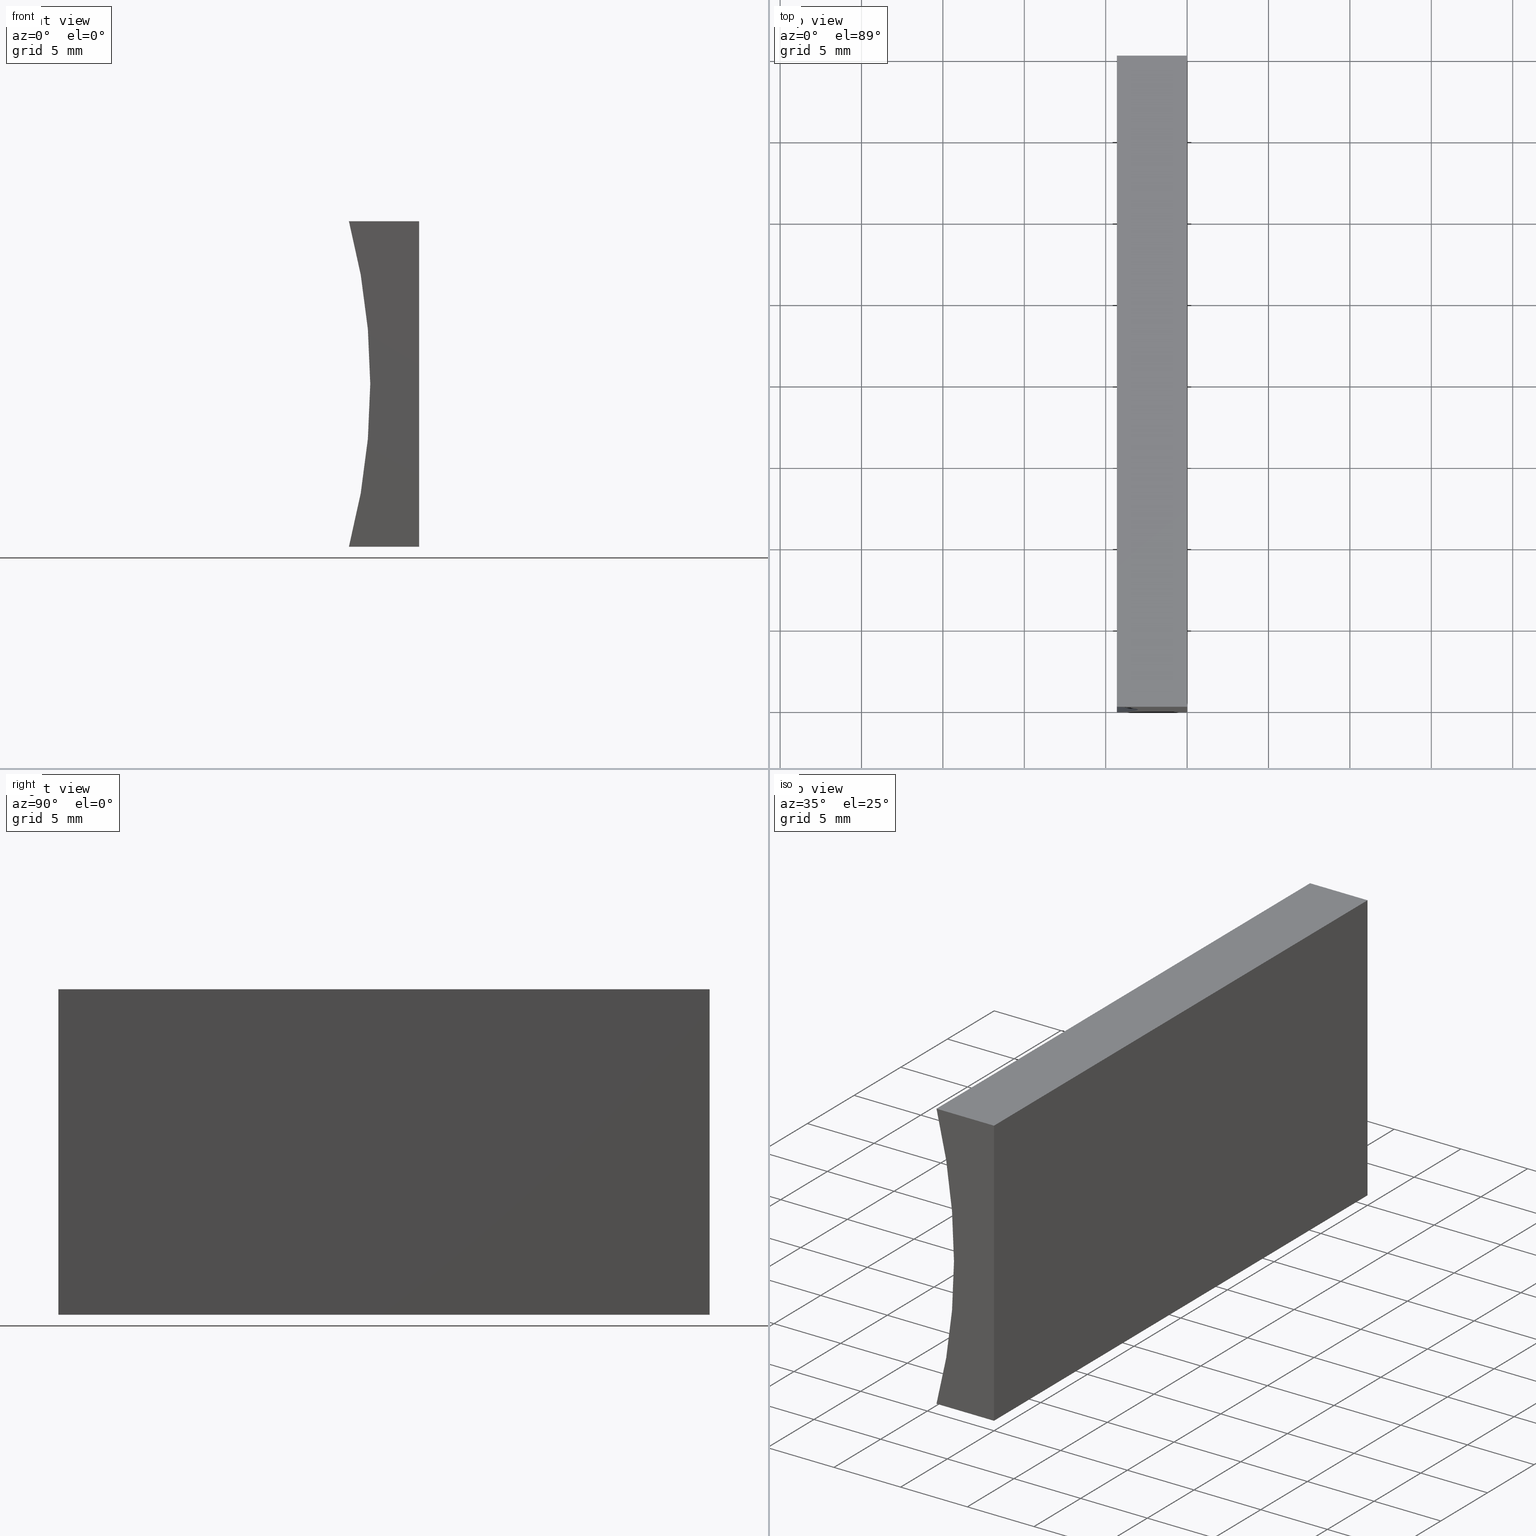
[diagram: canonical four-view strip — front | top / right | iso, engineering-drawing reading convention]
A machine part, canonical four-view strip (front | top / right | iso — engineering-drawing reading convention). The complete STEP part file that produces these views, byte-faithful:
ISO-10303-21;
HEADER;
FILE_DESCRIPTION (( 'STEP AP214' ),
    '1' );
FILE_NAME ('155356.STEP',
    '2019-06-28T06:45:50',
    ( 'user' ),
    ( '΢���й�' ),
    'SwSTEP 2.0',
    'SolidWorks 2016',
    '' );
FILE_SCHEMA (( 'AUTOMOTIVE_DESIGN' ));
ENDSEC;

DATA;
#1 = ADVANCED_BREP_SHAPE_REPRESENTATION ( '155356', ( #188, #73 ), #105 ) ;
#2 = MECHANICAL_DESIGN_GEOMETRIC_PRESENTATION_REPRESENTATION (  '', ( #96 ), #120 ) ;
#3 = DIRECTION ( 'NONE',  ( -0.0000000000000000000, -1.000000000000000000, -0.0000000000000000000 ) ) ;
#4 = DIRECTION ( 'NONE',  ( -6.123233995736766000E-017, -0.0000000000000000000, -1.000000000000000000 ) ) ;
#5 = FACE_OUTER_BOUND ( 'NONE', #123, .T. ) ;
#6 = SURFACE_STYLE_USAGE ( .BOTH. , #142 ) ;
#7 = PLANE ( 'NONE',  #172 ) ;
#8 = LINE ( 'NONE', #13, #110 ) ;
#9 = DIRECTION ( 'NONE',  ( 1.000000000000000000, 0.0000000000000000000, 0.0000000000000000000 ) ) ;
#10 = DIRECTION ( 'NONE',  ( 0.0000000000000000000, 0.0000000000000000000, -1.000000000000000000 ) ) ;
#11 = PLANE ( 'NONE',  #107 ) ;
#12 = DIRECTION ( 'NONE',  ( -1.000000000000000000, 0.0000000000000000000, 0.0000000000000000000 ) ) ;
#13 = CARTESIAN_POINT ( 'NONE',  ( 0.0000000000000000000, 0.0000000000000000000, 0.0000000000000000000 ) ) ;
#14 = DIRECTION ( 'NONE',  ( 0.0000000000000000000, 0.0000000000000000000, 1.000000000000000000 ) ) ;
#15 = LINE ( 'NONE', #77, #76 ) ;
#16 = VECTOR ( 'NONE', #65, 1000.000000000000000 ) ;
#17 = EDGE_CURVE ( 'NONE', #115, #79, #168, .T. ) ;
#18 = AXIS2_PLACEMENT_3D ( 'NONE', #21, #108, #192 ) ;
#19 = ORIENTED_EDGE ( 'NONE', *, *, #17, .F. ) ;
#20 = ORIENTED_EDGE ( 'NONE', *, *, #148, .T. ) ;
#21 = CARTESIAN_POINT ( 'NONE',  ( 0.0000000000000000000, 40.00000000000000000, 0.0000000000000000000 ) ) ;
#22 = CARTESIAN_POINT ( 'NONE',  ( -41.78000000000000100, 0.0000000000000000000, 10.00000000000000900 ) ) ;
#23 = DIRECTION ( 'NONE',  ( -0.0000000000000000000, -1.000000000000000000, -0.0000000000000000000 ) ) ;
#24 =( NAMED_UNIT ( * ) PLANE_ANGLE_UNIT ( ) SI_UNIT ( $, .RADIAN. ) );
#25 = ORIENTED_EDGE ( 'NONE', *, *, #148, .F. ) ;
#26 = CARTESIAN_POINT ( 'NONE',  ( 0.0000000000000000000, 40.00000000000000000, 0.0000000000000000000 ) ) ;
#27 = EDGE_CURVE ( 'NONE', #79, #50, #181, .T. ) ;
#28 = ORIENTED_EDGE ( 'NONE', *, *, #132, .F. ) ;
#29 = ORIENTED_EDGE ( 'NONE', *, *, #52, .T. ) ;
#30 =( NAMED_UNIT ( * ) PLANE_ANGLE_UNIT ( ) SI_UNIT ( $, .RADIAN. ) );
#31 = VERTEX_POINT ( 'NONE', #26 ) ;
#32 = VECTOR ( 'NONE', #46, 1000.000000000000000 ) ;
#33 = CARTESIAN_POINT ( 'NONE',  ( -41.78000000000000100, 40.00000000000000000, 10.00000000000000900 ) ) ;
#34 = SURFACE_STYLE_FILL_AREA ( #128 ) ;
#35 = PLANE ( 'NONE',  #18 ) ;
#36 = CARTESIAN_POINT ( 'NONE',  ( -41.78000000000000100, 0.0000000000000000000, 10.00000000000000900 ) ) ;
#37 = LINE ( 'NONE', #49, #16 ) ;
#38 = DIRECTION ( 'NONE',  ( 0.0000000000000000000, 0.0000000000000000000, 1.000000000000000000 ) ) ;
#39 = CARTESIAN_POINT ( 'NONE',  ( -4.311501231034083200, 40.00000000000000000, -1.734723475976807100E-015 ) ) ;
#40 = ADVANCED_FACE ( 'NONE', ( #165 ), #117, .F. ) ;
#41 = ORIENTED_EDGE ( 'NONE', *, *, #78, .T. ) ;
#42 = ORIENTED_EDGE ( 'NONE', *, *, #194, .T. ) ;
#43 = AXIS2_PLACEMENT_3D ( 'NONE', #199, #3, #10 ) ;
#44 = ORIENTED_EDGE ( 'NONE', *, *, #27, .F. ) ;
#45 = ADVANCED_FACE ( 'NONE', ( #146 ), #35, .F. ) ;
#46 = DIRECTION ( 'NONE',  ( -0.0000000000000000000, -1.000000000000000000, -0.0000000000000000000 ) ) ;
#47 = DIRECTION ( 'NONE',  ( -0.0000000000000000000, -1.000000000000000000, -0.0000000000000000000 ) ) ;
#48 = AXIS2_PLACEMENT_3D ( 'NONE', #36, #23, #38 ) ;
#49 = CARTESIAN_POINT ( 'NONE',  ( 0.0000000000000000000, 40.00000000000000000, 0.0000000000000000000 ) ) ;
#50 = VERTEX_POINT ( 'NONE', #176 ) ;
#51 = PRODUCT_DEFINITION_CONTEXT ( 'detailed design', #127, 'design' ) ;
#52 = EDGE_CURVE ( 'NONE', #137, #115, #198, .T. ) ;
#53 = COLOUR_RGB ( '',1.000000000000000000, 1.000000000000000000, 1.000000000000000000 ) ;
#54 = UNCERTAINTY_MEASURE_WITH_UNIT (LENGTH_MEASURE( 1.000000000000000100E-005 ), #175, 'distance_accuracy_value', 'NONE');
#55 = EDGE_CURVE ( 'NONE', #31, #50, #116, .T. ) ;
#56 = PRODUCT_DEFINITION_SHAPE ( 'NONE', 'NONE',  #135 ) ;
#57 = EDGE_LOOP ( 'NONE', ( #138, #61, #20, #42 ) ) ;
#58 =( GEOMETRIC_REPRESENTATION_CONTEXT ( 3 ) GLOBAL_UNCERTAINTY_ASSIGNED_CONTEXT ( ( #54 ) ) GLOBAL_UNIT_ASSIGNED_CONTEXT ( ( #175, #30, #200 ) ) REPRESENTATION_CONTEXT ( 'NONE', 'WORKASPACE' ) );
#59 = PRODUCT_DEFINITION_FORMATION_WITH_SPECIFIED_SOURCE ( '�κ�', '', #169, .NOT_KNOWN. ) ;
#60 = PLANE ( 'NONE',  #153 ) ;
#61 = ORIENTED_EDGE ( 'NONE', *, *, #132, .T. ) ;
#62 = FILL_AREA_STYLE_COLOUR ( '', #53 ) ;
#63 = COLOUR_RGB ( '',1.000000000000000000, 1.000000000000000000, 1.000000000000000000 ) ;
#64 = DIRECTION ( 'NONE',  ( -0.0000000000000000000, -1.000000000000000000, -0.0000000000000000000 ) ) ;
#65 = DIRECTION ( 'NONE',  ( -1.000000000000000000, 0.0000000000000000000, 0.0000000000000000000 ) ) ;
#66 = PRODUCT_CONTEXT ( 'NONE', #159, 'mechanical' ) ;
#67 = VECTOR ( 'NONE', #193, 1000.000000000000000 ) ;
#68 = CARTESIAN_POINT ( 'NONE',  ( -4.311501231034082300, 0.0000000000000000000, 20.00000000000000000 ) ) ;
#69 = VECTOR ( 'NONE', #84, 1000.000000000000000 ) ;
#70 = PRESENTATION_LAYER_ASSIGNMENT (  '', '', ( #177 ) ) ;
#71 = VECTOR ( 'NONE', #4, 1000.000000000000000 ) ;
#72 = VERTEX_POINT ( 'NONE', #143 ) ;
#73 = AXIS2_PLACEMENT_3D ( 'NONE', #93, #195, #9 ) ;
#74 = ORIENTED_EDGE ( 'NONE', *, *, #150, .T. ) ;
#75 = CARTESIAN_POINT ( 'NONE',  ( 0.0000000000000000000, 40.00000000000000000, 0.0000000000000000000 ) ) ;
#76 = VECTOR ( 'NONE', #64, 1000.000000000000000 ) ;
#77 = CARTESIAN_POINT ( 'NONE',  ( -4.311501231034083200, 40.00000000000000000, -1.734723475976807100E-015 ) ) ;
#78 = EDGE_CURVE ( 'NONE', #101, #79, #179, .T. ) ;
#79 = VERTEX_POINT ( 'NONE', #136 ) ;
#80 = CARTESIAN_POINT ( 'NONE',  ( 1.224646799147353300E-015, 40.00000000000000000, 20.00000000000000000 ) ) ;
#81 = DIRECTION ( 'NONE',  ( 1.000000000000000000, 0.0000000000000000000, -0.0000000000000000000 ) ) ;
#82 = CARTESIAN_POINT ( 'NONE',  ( 1.224646799147353300E-015, 40.00000000000000000, 20.00000000000000000 ) ) ;
#83 = DIRECTION ( 'NONE',  ( 0.0000000000000000000, -0.0000000000000000000, 1.000000000000000000 ) ) ;
#84 = DIRECTION ( 'NONE',  ( 1.000000000000000000, -0.0000000000000000000, -0.0000000000000000000 ) ) ;
#85 = FACE_OUTER_BOUND ( 'NONE', #57, .T. ) ;
#86 = MECHANICAL_DESIGN_GEOMETRIC_PRESENTATION_REPRESENTATION (  '', ( #177 ), #58 ) ;
#87 = ORIENTED_EDGE ( 'NONE', *, *, #141, .T. ) ;
#88 = FACE_OUTER_BOUND ( 'NONE', #119, .T. ) ;
#89 = PRODUCT_RELATED_PRODUCT_CATEGORY ( 'part', '', ( #169 ) ) ;
#90 = CARTESIAN_POINT ( 'NONE',  ( 0.0000000000000000000, 40.00000000000000000, 0.0000000000000000000 ) ) ;
#91 = CARTESIAN_POINT ( 'NONE',  ( 0.0000000000000000000, 0.0000000000000000000, 0.0000000000000000000 ) ) ;
#92 = ORIENTED_EDGE ( 'NONE', *, *, #55, .T. ) ;
#93 = CARTESIAN_POINT ( 'NONE',  ( 0.0000000000000000000, 0.0000000000000000000, 0.0000000000000000000 ) ) ;
#94 = FACE_OUTER_BOUND ( 'NONE', #202, .T. ) ;
#95 = DIRECTION ( 'NONE',  ( 0.0000000000000000000, 0.0000000000000000000, -1.000000000000000000 ) ) ;
#96 = STYLED_ITEM ( 'NONE', ( #203 ), #1 ) ;
#97 = DIRECTION ( 'NONE',  ( 0.0000000000000000000, -0.0000000000000000000, 1.000000000000000000 ) ) ;
#98 = CARTESIAN_POINT ( 'NONE',  ( 1.224646799147353300E-015, 40.00000000000000000, 20.00000000000000000 ) ) ;
#99 = DIRECTION ( 'NONE',  ( 1.000000000000000000, -0.0000000000000000000, -0.0000000000000000000 ) ) ;
#100 = CARTESIAN_POINT ( 'NONE',  ( -4.311501231034082300, 40.00000000000000000, 20.00000000000000000 ) ) ;
#101 = VERTEX_POINT ( 'NONE', #98 ) ;
#102 = DIRECTION ( 'NONE',  ( -1.000000000000000000, 0.0000000000000000000, -0.0000000000000000000 ) ) ;
#103 =( NAMED_UNIT ( * ) SI_UNIT ( $, .STERADIAN. ) SOLID_ANGLE_UNIT ( ) );
#104 = CLOSED_SHELL ( 'NONE', ( #164, #201, #40, #45, #154, #166 ) ) ;
#105 =( GEOMETRIC_REPRESENTATION_CONTEXT ( 3 ) GLOBAL_UNCERTAINTY_ASSIGNED_CONTEXT ( ( #151 ) ) GLOBAL_UNIT_ASSIGNED_CONTEXT ( ( #180, #24, #103 ) ) REPRESENTATION_CONTEXT ( 'NONE', 'WORKASPACE' ) );
#106 = EDGE_LOOP ( 'NONE', ( #133, #187, #113, #41 ) ) ;
#107 = AXIS2_PLACEMENT_3D ( 'NONE', #90, #83, #81 ) ;
#108 = DIRECTION ( 'NONE',  ( -1.000000000000000000, 0.0000000000000000000, 6.123233995736766000E-017 ) ) ;
#109 =( NAMED_UNIT ( * ) SI_UNIT ( $, .STERADIAN. ) SOLID_ANGLE_UNIT ( ) );
#110 = VECTOR ( 'NONE', #12, 1000.000000000000000 ) ;
#111 = AXIS2_PLACEMENT_3D ( 'NONE', #161, #95, #102 ) ;
#112 = APPLICATION_PROTOCOL_DEFINITION ( 'draft international standard', 'automotive_design', 1998, #127 ) ;
#113 = ORIENTED_EDGE ( 'NONE', *, *, #194, .F. ) ;
#114 = SHAPE_DEFINITION_REPRESENTATION ( #56, #1 ) ;
#115 = VERTEX_POINT ( 'NONE', #68 ) ;
#116 = LINE ( 'NONE', #125, #67 ) ;
#117 = PLANE ( 'NONE',  #111 ) ;
#118 = SURFACE_SIDE_STYLE ('',( #170 ) ) ;
#119 = EDGE_LOOP ( 'NONE', ( #121, #197, #28, #74 ) ) ;
#120 =( GEOMETRIC_REPRESENTATION_CONTEXT ( 3 ) GLOBAL_UNCERTAINTY_ASSIGNED_CONTEXT ( ( #144 ) ) GLOBAL_UNIT_ASSIGNED_CONTEXT ( ( #157, #163, #109 ) ) REPRESENTATION_CONTEXT ( 'NONE', 'WORKASPACE' ) );
#121 = ORIENTED_EDGE ( 'NONE', *, *, #124, .T. ) ;
#122 = LINE ( 'NONE', #80, #69 ) ;
#123 = EDGE_LOOP ( 'NONE', ( #190, #44, #19, #191 ) ) ;
#124 = EDGE_CURVE ( 'NONE', #72, #115, #171, .T. ) ;
#125 = CARTESIAN_POINT ( 'NONE',  ( 0.0000000000000000000, 40.00000000000000000, 0.0000000000000000000 ) ) ;
#126 = LINE ( 'NONE', #75, #134 ) ;
#127 = APPLICATION_CONTEXT ( 'automotive_design' ) ;
#128 = FILL_AREA_STYLE ('',( #189 ) ) ;
#129 = ORIENTED_EDGE ( 'NONE', *, *, #150, .F. ) ;
#130 = CARTESIAN_POINT ( 'NONE',  ( -4.311501231034082300, 40.00000000000000000, 20.00000000000000000 ) ) ;
#131 = APPLICATION_PROTOCOL_DEFINITION ( 'draft international standard', 'automotive_design', 1998, #159 ) ;
#132 = EDGE_CURVE ( 'NONE', #184, #137, #156, .T. ) ;
#133 = ORIENTED_EDGE ( 'NONE', *, *, #27, .T. ) ;
#134 = VECTOR ( 'NONE', #174, 1000.000000000000000 ) ;
#135 = PRODUCT_DEFINITION ( 'δ֪', '', #59, #51 ) ;
#136 = CARTESIAN_POINT ( 'NONE',  ( 1.224646799147353300E-015, 0.0000000000000000000, 20.00000000000000000 ) ) ;
#137 = VERTEX_POINT ( 'NONE', #130 ) ;
#138 = ORIENTED_EDGE ( 'NONE', *, *, #139, .T. ) ;
#139 = EDGE_CURVE ( 'NONE', #31, #184, #37, .T. ) ;
#140 = ORIENTED_EDGE ( 'NONE', *, *, #78, .F. ) ;
#141 = EDGE_CURVE ( 'NONE', #50, #72, #8, .T. ) ;
#142 = SURFACE_SIDE_STYLE ('',( #34 ) ) ;
#143 = CARTESIAN_POINT ( 'NONE',  ( -4.311501231034083200, 0.0000000000000000000, -1.734723475976807100E-015 ) ) ;
#144 = UNCERTAINTY_MEASURE_WITH_UNIT (LENGTH_MEASURE( 1.000000000000000100E-005 ), #157, 'distance_accuracy_value', 'NONE');
#145 = PRESENTATION_LAYER_ASSIGNMENT (  '', '', ( #96 ) ) ;
#146 = FACE_OUTER_BOUND ( 'NONE', #106, .T. ) ;
#147 = FILL_AREA_STYLE ('',( #62 ) ) ;
#148 = EDGE_CURVE ( 'NONE', #137, #101, #122, .T. ) ;
#149 = VECTOR ( 'NONE', #99, 1000.000000000000000 ) ;
#150 = EDGE_CURVE ( 'NONE', #184, #72, #15, .T. ) ;
#151 = UNCERTAINTY_MEASURE_WITH_UNIT (LENGTH_MEASURE( 1.000000000000000100E-005 ), #180, 'distance_accuracy_value', 'NONE');
#152 = ORIENTED_EDGE ( 'NONE', *, *, #17, .T. ) ;
#153 = AXIS2_PLACEMENT_3D ( 'NONE', #196, #182, #97 ) ;
#154 = ADVANCED_FACE ( 'NONE', ( #85 ), #60, .T. ) ;
#155 = CARTESIAN_POINT ( 'NONE',  ( 1.224646799147353300E-015, 0.0000000000000000000, 20.00000000000000000 ) ) ;
#156 = CIRCLE ( 'NONE', #167, 38.78000000000000800 ) ;
#157 =( LENGTH_UNIT ( ) NAMED_UNIT ( * ) SI_UNIT ( .MILLI., .METRE. ) );
#158 = SURFACE_STYLE_USAGE ( .BOTH. , #118 ) ;
#159 = APPLICATION_CONTEXT ( 'automotive_design' ) ;
#160 = ORIENTED_EDGE ( 'NONE', *, *, #139, .F. ) ;
#161 = CARTESIAN_POINT ( 'NONE',  ( 1.224646799147353300E-015, 40.00000000000000000, 20.00000000000000000 ) ) ;
#162 = CYLINDRICAL_SURFACE ( 'NONE', #43, 38.78000000000000800 ) ;
#163 =( NAMED_UNIT ( * ) PLANE_ANGLE_UNIT ( ) SI_UNIT ( $, .RADIAN. ) );
#164 = ADVANCED_FACE ( 'NONE', ( #94 ), #11, .F. ) ;
#165 = FACE_OUTER_BOUND ( 'NONE', #185, .T. ) ;
#166 = ADVANCED_FACE ( 'NONE', ( #5 ), #7, .F. ) ;
#167 = AXIS2_PLACEMENT_3D ( 'NONE', #33, #47, #14 ) ;
#168 = LINE ( 'NONE', #155, #149 ) ;
#169 = PRODUCT ( '155356', '155356', '', ( #66 ) ) ;
#170 = SURFACE_STYLE_FILL_AREA ( #147 ) ;
#171 = CIRCLE ( 'NONE', #48, 38.78000000000000800 ) ;
#172 = AXIS2_PLACEMENT_3D ( 'NONE', #22, #178, #186 ) ;
#173 = PRESENTATION_STYLE_ASSIGNMENT (( #6 ) ) ;
#174 = DIRECTION ( 'NONE',  ( -6.123233995736766000E-017, -0.0000000000000000000, -1.000000000000000000 ) ) ;
#175 =( LENGTH_UNIT ( ) NAMED_UNIT ( * ) SI_UNIT ( .MILLI., .METRE. ) );
#176 = CARTESIAN_POINT ( 'NONE',  ( 0.0000000000000000000, 0.0000000000000000000, 0.0000000000000000000 ) ) ;
#177 = STYLED_ITEM ( 'NONE', ( #173 ), #188 ) ;
#178 = DIRECTION ( 'NONE',  ( 0.0000000000000000000, 1.000000000000000000, 0.0000000000000000000 ) ) ;
#179 = LINE ( 'NONE', #82, #204 ) ;
#180 =( LENGTH_UNIT ( ) NAMED_UNIT ( * ) SI_UNIT ( .MILLI., .METRE. ) );
#181 = LINE ( 'NONE', #91, #71 ) ;
#182 = DIRECTION ( 'NONE',  ( 0.0000000000000000000, 1.000000000000000000, 0.0000000000000000000 ) ) ;
#183 = DIRECTION ( 'NONE',  ( -0.0000000000000000000, -1.000000000000000000, -0.0000000000000000000 ) ) ;
#184 = VERTEX_POINT ( 'NONE', #39 ) ;
#185 = EDGE_LOOP ( 'NONE', ( #152, #140, #25, #29 ) ) ;
#186 = DIRECTION ( 'NONE',  ( 0.0000000000000000000, -0.0000000000000000000, 1.000000000000000000 ) ) ;
#187 = ORIENTED_EDGE ( 'NONE', *, *, #55, .F. ) ;
#188 = MANIFOLD_SOLID_BREP ( '͹̨-����1', #104 ) ;
#189 = FILL_AREA_STYLE_COLOUR ( '', #63 ) ;
#190 = ORIENTED_EDGE ( 'NONE', *, *, #141, .F. ) ;
#191 = ORIENTED_EDGE ( 'NONE', *, *, #124, .F. ) ;
#192 = DIRECTION ( 'NONE',  ( 6.123233995736766000E-017, 0.0000000000000000000, 1.000000000000000000 ) ) ;
#193 = DIRECTION ( 'NONE',  ( -0.0000000000000000000, -1.000000000000000000, -0.0000000000000000000 ) ) ;
#194 = EDGE_CURVE ( 'NONE', #101, #31, #126, .T. ) ;
#195 = DIRECTION ( 'NONE',  ( 0.0000000000000000000, 0.0000000000000000000, 1.000000000000000000 ) ) ;
#196 = CARTESIAN_POINT ( 'NONE',  ( -41.78000000000000100, 40.00000000000000000, 10.00000000000000900 ) ) ;
#197 = ORIENTED_EDGE ( 'NONE', *, *, #52, .F. ) ;
#198 = LINE ( 'NONE', #100, #32 ) ;
#199 = CARTESIAN_POINT ( 'NONE',  ( -41.78000000000000100, 40.00000000000000000, 10.00000000000000900 ) ) ;
#200 =( NAMED_UNIT ( * ) SI_UNIT ( $, .STERADIAN. ) SOLID_ANGLE_UNIT ( ) );
#201 = ADVANCED_FACE ( 'NONE', ( #88 ), #162, .F. ) ;
#202 = EDGE_LOOP ( 'NONE', ( #87, #129, #160, #92 ) ) ;
#203 = PRESENTATION_STYLE_ASSIGNMENT (( #158 ) ) ;
#204 = VECTOR ( 'NONE', #183, 1000.000000000000000 ) ;
ENDSEC;
END-ISO-10303-21;
